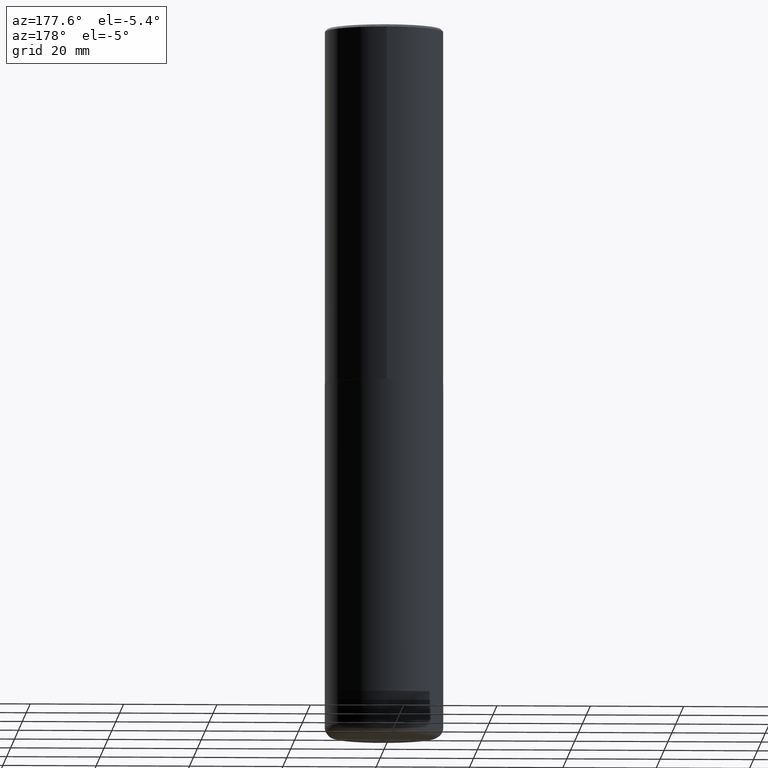
[diagram: clean part render]
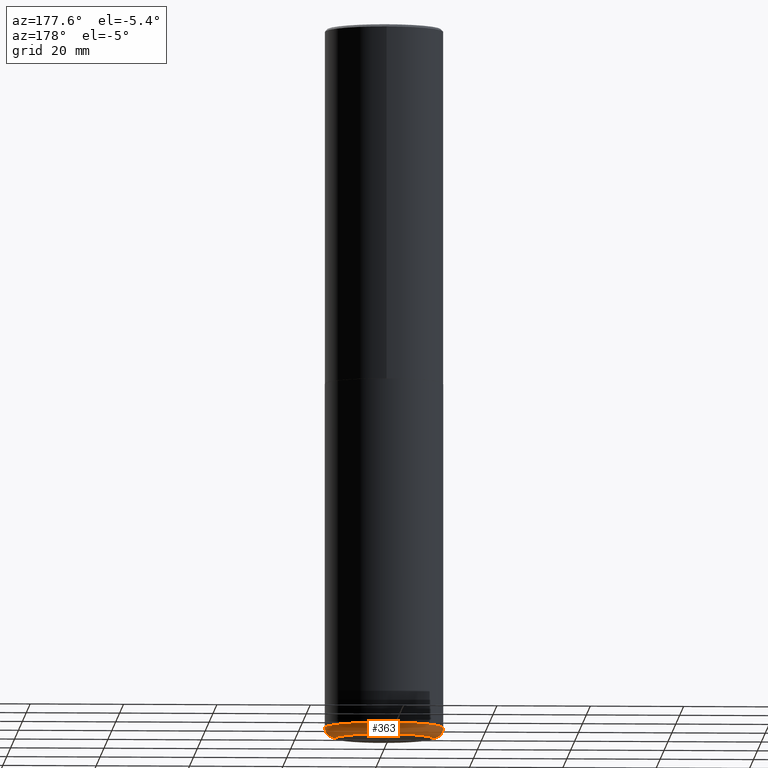
[diagram: same view with one face highlighted and labeled with its STEP entity id]
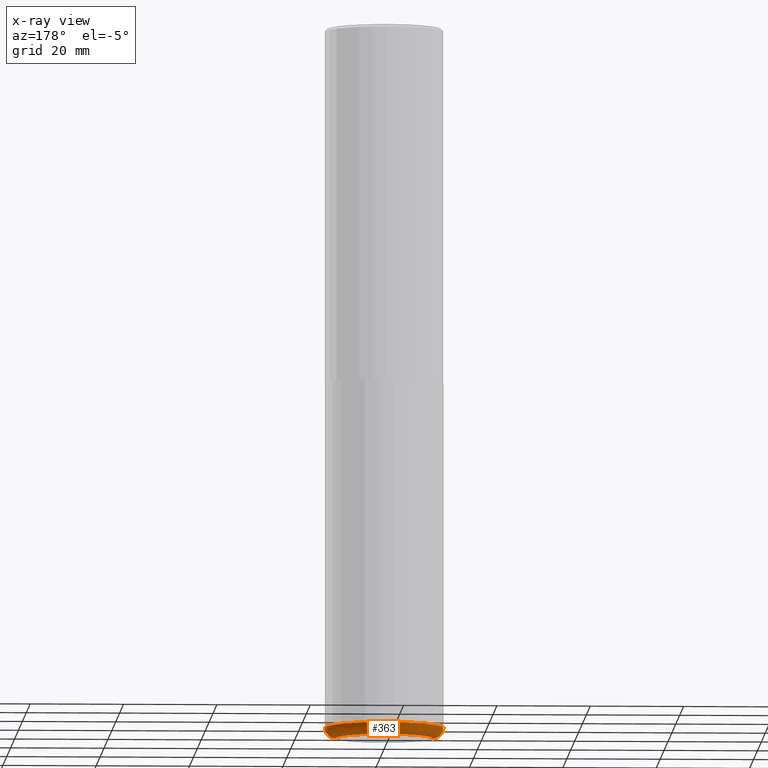
[diagram: x-ray of the same camera — body ghosted, the highlighted face saturated]
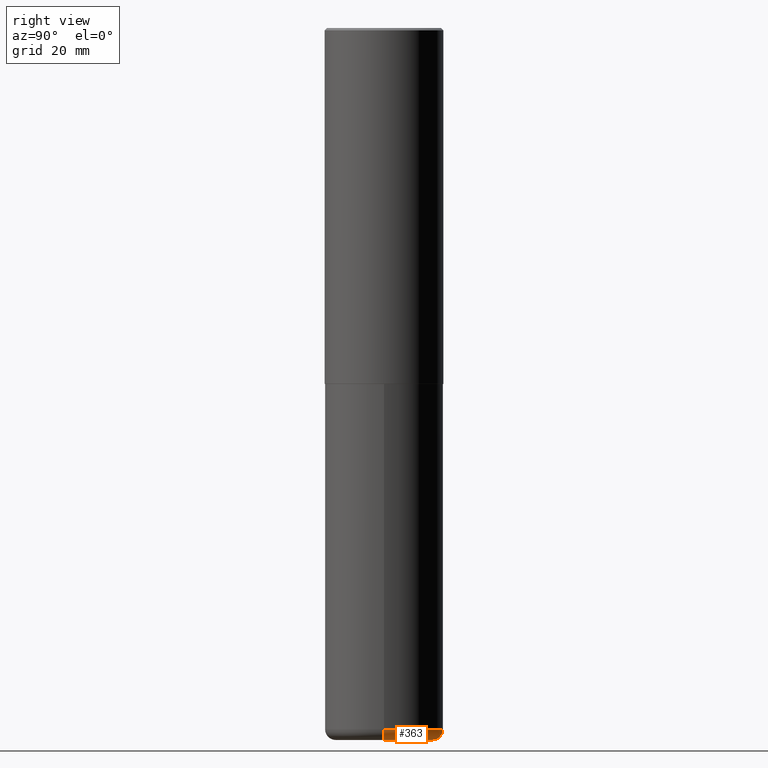
[diagram: same view with one face highlighted and labeled with its STEP entity id]
A machine part, auxiliary view. The second image highlights one B-rep face of the part: STEP entity #363.
The next image is the same camera in x-ray: the body ghosted, the highlighted face saturated — about 0% of this face is hidden behind the body in this view.
A second angle (right view) of the same face is appended — the face is thin or edge-on in the first view.
In plain terms, the highlighted toroidal blend (fillet) surface has major radius 10.414 mm and minor (blend) radius 2.286 mm.
Its self-contained STEP definition (entity closure, byte-faithful):
#13 = CARTESIAN_POINT ( 'NONE',  ( -0.4099999999999999756, -1.772142949594657767E-14, -5.910000000000000142 ) ) ;
#28 = EDGE_CURVE ( 'NONE', #376, #152, #300, .T. ) ;
#35 = EDGE_CURVE ( 'NONE', #118, #196, #252, .T. ) ;
#38 = CIRCLE ( 'NONE', #320, 0.09000000000000020484 ) ;
#63 = CARTESIAN_POINT ( 'NONE',  ( 0.4099999999999999756, -2.381190273091024584E-14, -6.000000000000000888 ) ) ;
#81 = DIRECTION ( 'NONE',  ( 1.000000000000000000, -6.982962677686268288E-15, 4.883557194083113462E-29 ) ) ;
#85 = CARTESIAN_POINT ( 'NONE',  ( 1.445272064455415567E-28, -2.063465471256298944E-14, -5.910000000000000142 ) ) ;
#116 = ORIENTED_EDGE ( 'NONE', *, *, #291, .T. ) ;
#118 = VERTEX_POINT ( 'NONE', #63 ) ;
#119 = AXIS2_PLACEMENT_3D ( 'NONE', #85, #245, #81 ) ;
#126 = DIRECTION ( 'NONE',  ( -2.445468806185136597E-29, 3.491481338843145583E-15, 1.000000000000000000 ) ) ;
#152 = VERTEX_POINT ( 'NONE', #200 ) ;
#154 = DIRECTION ( 'NONE',  ( 1.000000000000000000, -6.982962677686271444E-15, 0.000000000000000000 ) ) ;
#169 = AXIS2_PLACEMENT_3D ( 'NONE', #394, #299, #201 ) ;
#172 = CARTESIAN_POINT ( 'NONE',  ( -0.4099999999999999756, -1.755880192510247630E-14, -6.000000000000000888 ) ) ;
#178 = ORIENTED_EDGE ( 'NONE', *, *, #35, .T. ) ;
#185 = EDGE_LOOP ( 'NONE', ( #178, #116, #406, #308 ) ) ;
#196 = VERTEX_POINT ( 'NONE', #172 ) ;
#198 = DIRECTION ( 'NONE',  ( -1.000000000000000000, 7.105427357600996337E-15, 0.000000000000000000 ) ) ;
#200 = CARTESIAN_POINT ( 'NONE',  ( -0.5000000000000001110, -1.708194103376248851E-14, -5.910000000000000142 ) ) ;
#201 = DIRECTION ( 'NONE',  ( 1.000000000000000000, -6.982962677686252511E-15, 0.000000000000000000 ) ) ;
#203 = DIRECTION ( 'NONE',  ( 7.105427357601001859E-15, 1.000000000000000000, -3.491481338843145583E-15 ) ) ;
#212 = EDGE_CURVE ( 'NONE', #118, #376, #243, .T. ) ;
#238 = CARTESIAN_POINT ( 'NONE',  ( 0.5000000000000001110, -2.412613605140612280E-14, -5.910000000000000142 ) ) ;
#243 = CIRCLE ( 'NONE', #169, 0.09000000000000020484 ) ;
#245 = DIRECTION ( 'NONE',  ( -2.445468806185136597E-29, 3.491481338843145583E-15, 1.000000000000000000 ) ) ;
#252 = CIRCLE ( 'NONE', #358, 0.4099999999999999756 ) ;
#254 = CARTESIAN_POINT ( 'NONE',  ( 1.445272064455415567E-28, -2.063465471256298944E-14, -5.910000000000000142 ) ) ;
#270 = AXIS2_PLACEMENT_3D ( 'NONE', #254, #323, #318 ) ;
#291 = EDGE_CURVE ( 'NONE', #196, #152, #38, .T. ) ;
#295 = TOROIDAL_SURFACE ( 'NONE', #119, 0.4099999999999999756, 0.09000000000000020484 ) ;
#299 = DIRECTION ( 'NONE',  ( -6.982962677686266711E-15, -1.000000000000000000, 3.491481338843145583E-15 ) ) ;
#300 = CIRCLE ( 'NONE', #270, 0.5000000000000000000 ) ;
#308 = ORIENTED_EDGE ( 'NONE', *, *, #212, .F. ) ;
#318 = DIRECTION ( 'NONE',  ( 1.000000000000000000, -6.982962677686262766E-15, 0.000000000000000000 ) ) ;
#320 = AXIS2_PLACEMENT_3D ( 'NONE', #13, #203, #198 ) ;
#323 = DIRECTION ( 'NONE',  ( -2.445468806185136597E-29, 3.491481338843145583E-15, 1.000000000000000000 ) ) ;
#350 = CARTESIAN_POINT ( 'NONE',  ( 1.467281283711081958E-28, -2.094888803305887271E-14, -6.000000000000000888 ) ) ;
#358 = AXIS2_PLACEMENT_3D ( 'NONE', #350, #126, #154 ) ;
#363 = ADVANCED_FACE ( 'NONE', ( #372 ), #295, .T. ) ;
#372 = FACE_OUTER_BOUND ( 'NONE', #185, .T. ) ;
#376 = VERTEX_POINT ( 'NONE', #238 ) ;
#394 = CARTESIAN_POINT ( 'NONE',  ( 0.4099999999999999756, -2.349766941041436258E-14, -5.910000000000000142 ) ) ;
#406 = ORIENTED_EDGE ( 'NONE', *, *, #28, .F. ) ;